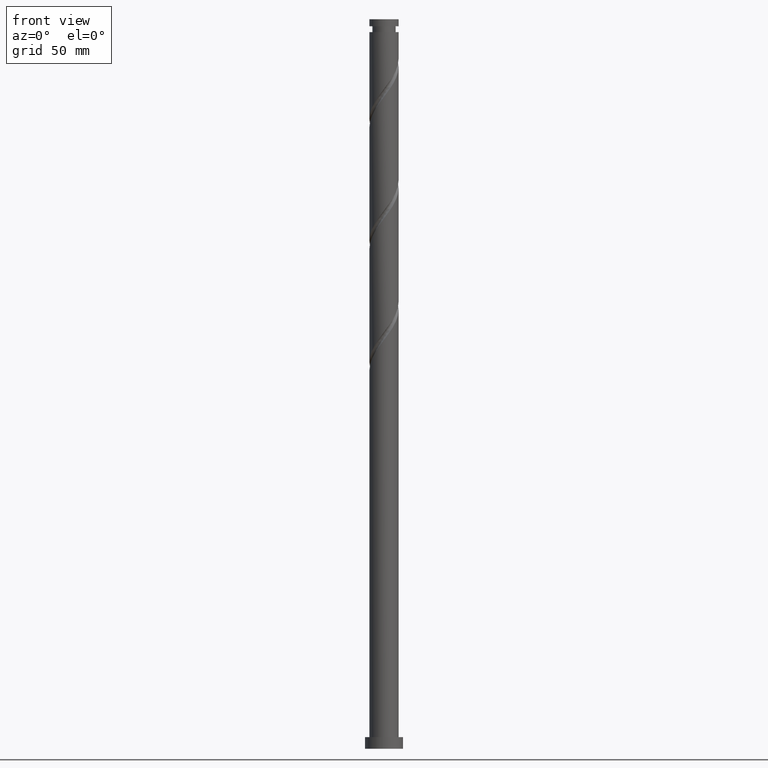
[diagram: clean part render]
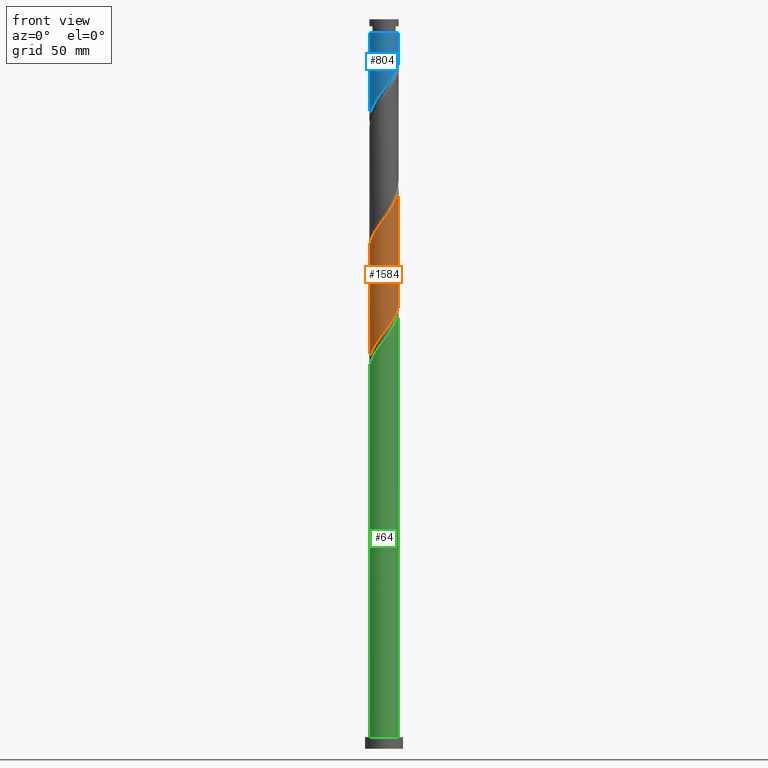
[diagram: same view with three faces highlighted in distinct colors, each labeled with its STEP entity id]
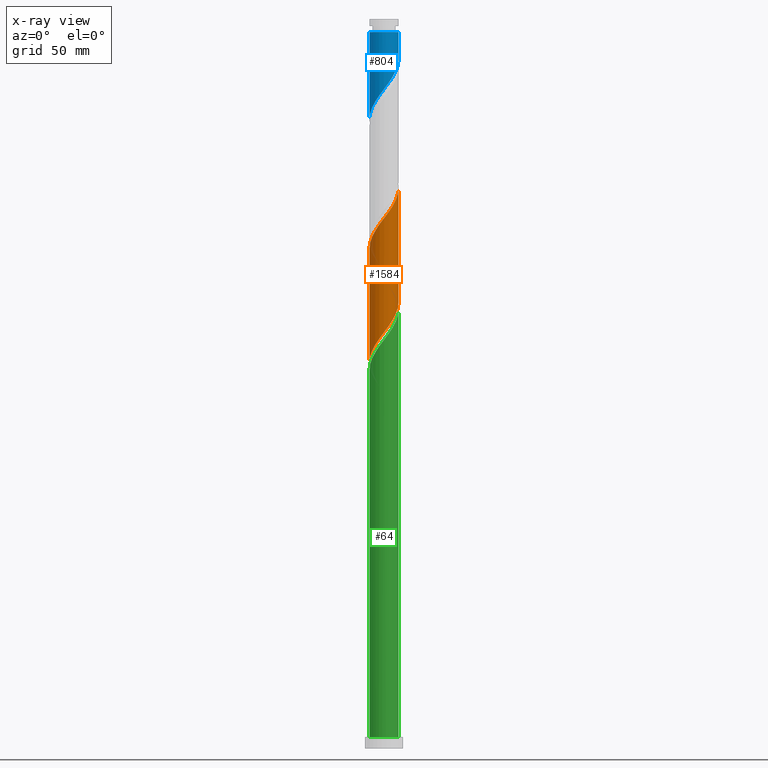
[diagram: x-ray of the same camera — body ghosted, the three highlighted faces saturated]
A machine part, front view with three faces highlighted in distinct colors.
The next image is the same camera in x-ray (body ghosted, the three faces saturated) — at least one of them is partly hidden behind the body in this view.
Their STEP definitions:

[orange] entity #1584 — the highlighted cylindrical surface (edge-blend (fillet) strip) has radius 10 mm, axis along (-0, -0, -1).
#10 = EDGE_LOOP ( 'NONE', ( #902, #165, #56, #146 ) ) ;
#24 = LINE ( 'NONE', #693, #1190 ) ;
#31 = EDGE_CURVE ( 'NONE', #1774, #295, #1317, .T. ) ;
#46 = CARTESIAN_POINT ( 'NONE',  ( -10.00000000000000178, -0.9647981492898184408, 265.9510184262350094 ) ) ;
#52 = CARTESIAN_POINT ( 'NONE',  ( 8.336771183575214295, -5.522521727681144021, 376.6015080094888958 ) ) ;
#56 = ORIENTED_EDGE ( 'NONE', *, *, #488, .T. ) ;
#67 = CARTESIAN_POINT ( 'NONE',  ( -9.800000000000013145, -1.989974874213249256, 345.3515080094888958 ) ) ;
#73 = CARTESIAN_POINT ( 'NONE',  ( 9.627253911664572783, -2.878547858533178516, 380.5077580094888958 ) ) ;
#95 = CARTESIAN_POINT ( 'NONE',  ( -10.00000000000001421, 1.093322644084541298E-14, 342.6946443648252512 ) ) ;
#105 = CARTESIAN_POINT ( 'NONE',  ( -2.878547858533178072, -9.627253911664572783, 359.6744246761555814 ) ) ;
#112 = CARTESIAN_POINT ( 'NONE',  ( -8.842937235881560554, -4.772055814403908691, 349.2577580094890664 ) ) ;
#146 = ORIENTED_EDGE ( 'NONE', *, *, #1242, .F. ) ;
#154 = CARTESIAN_POINT ( 'NONE',  ( 6.343622021019015733, -7.792850268545460146, 294.5702580094890095 ) ) ;
#165 = ORIENTED_EDGE ( 'NONE', *, *, #31, .F. ) ;
#225 = CARTESIAN_POINT ( 'NONE',  ( 5.588794693675228409, -8.292489003426412708, 371.3931746761555814 ) ) ;
#253 = CARTESIAN_POINT ( 'NONE',  ( -3.789984646438214089, -9.253973005134763952, 358.3723413428222102 ) ) ;
#264 = CARTESIAN_POINT ( 'NONE',  ( -9.999999999999996447, -7.861634696127906080E-15, 264.6750383208190556 ) ) ;
#268 = CARTESIAN_POINT ( 'NONE',  ( 9.995995418006760502, -1.024759121313043142, 304.9869246761555814 ) ) ;
#278 = CARTESIAN_POINT ( 'NONE',  ( 7.042831395995134969, -7.099191920745997031, 295.8723413428222671 ) ) ;
#295 = VERTEX_POINT ( 'NONE', #1896 ) ;
#298 = CARTESIAN_POINT ( 'NONE',  ( 1.911800580680536488, -9.815549833794827705, 288.0598413428222102 ) ) ;
#378 = CARTESIAN_POINT ( 'NONE',  ( 9.253973005134763952, -3.789984646438214089, 379.2056746761555814 ) ) ;
#424 = CARTESIAN_POINT ( 'NONE',  ( 1.989974874213248590, -9.800000000000013145, 366.1848413428221534 ) ) ;
#428 = CARTESIAN_POINT ( 'NONE',  ( -10.00000000000001599, -0.01992653374257394999, 342.7209979193424942 ) ) ;
#488 = EDGE_CURVE ( 'NONE', #1774, #1878, #24, .T. ) ;
#510 = CARTESIAN_POINT ( 'NONE',  ( -9.627253911664558572, -2.878547858533170078, 268.5285913428222102 ) ) ;
#522 = DIRECTION ( 'NONE',  ( -0.000000000000000000, -0.000000000000000000, -1.000000000000000000 ) ) ;
#537 = CARTESIAN_POINT ( 'NONE',  ( 7.099191920746005025, -7.042831395995150956, 373.9973413428221534 ) ) ;
#572 = CARTESIAN_POINT ( 'NONE',  ( -8.292489003426412708, -5.588794693675228409, 350.5598413428221534 ) ) ;
#591 = CARTESIAN_POINT ( 'NONE',  ( -7.042831395995150956, -7.099191920746005025, 353.1640080094888958 ) ) ;
#607 = CARTESIAN_POINT ( 'NONE',  ( 10.00000000000000178, 1.224646799147353454E-15, 500.0000000000000000 ) ) ;
#617 = CARTESIAN_POINT ( 'NONE',  ( 10.00000000000000000, -0.01992653374260383234, 306.3153514329683844 ) ) ;
#631 = CARTESIAN_POINT ( 'NONE',  ( 9.800000000000002487, -1.989974874213249700, 303.6848413428221534 ) ) ;
#670 = CARTESIAN_POINT ( 'NONE',  ( -3.863623220758683363, -9.223470908937388302, 280.2473413428220965 ) ) ;
#692 = CARTESIAN_POINT ( 'NONE',  ( -9.999999999999996447, -7.861634696127907657E-15, 264.6750383208190556 ) ) ;
#693 = CARTESIAN_POINT ( 'NONE',  ( -10.00000000000000178, 0.000000000000000000, 500.0000000000000000 ) ) ;
#748 = CARTESIAN_POINT ( 'NONE',  ( 2.955190627113460256, -9.604004581993260459, 367.4869246761555246 ) ) ;
#759 = CARTESIAN_POINT ( 'NONE',  ( -7.742040770971267527, -6.405533572946550791, 351.8619246761556951 ) ) ;
#771 = CARTESIAN_POINT ( 'NONE',  ( 2.878547858533169634, -9.627253911664558572, 289.3619246761555246 ) ) ;
#791 = CARTESIAN_POINT ( 'NONE',  ( -0.03985290924256556372, -9.999920586965924230, 285.4556746761555814 ) ) ;
#841 = CARTESIAN_POINT ( 'NONE',  ( -1.024759121313038257, -9.995995418006760502, 284.1535913428222102 ) ) ;
#847 = VECTOR ( 'NONE', #1740, 1000.000000000000000 ) ;
#873 =( BOUNDED_CURVE ( )  B_SPLINE_CURVE ( 2, ( #2078, #617, #1760, #268, #631, #1267, #953, #2056, #1614, #1244, #278, #154, #1895, #1079, #1749, #771, #298, #942, #791, #841, #1333, #1647, #670, #1346, #1989, #1134, #2000, #1658, #1978, #1010, #998, #510, #1494, #46, #692 ),
 .UNSPECIFIED., .F., .T. ) 
 B_SPLINE_CURVE_WITH_KNOTS ( ( 3, 2, 2, 2, 2, 2, 2, 2, 2, 2, 2, 2, 2, 2, 2, 2, 2, 3 ),
 ( 0.8045286902180871502, 0.8046875000000000000, 0.8125000000000000000, 0.8203125000000000000, 0.8281250000000000000, 0.8359375000000000000, 0.8437500000000000000, 0.8515625000000000000, 0.8593750000000000000, 0.8671875000000000000, 0.8750000000000000000, 0.8828125000000000000, 0.8906250000000000000, 0.8984375000000000000, 0.9062500000000000000, 0.9140625000000000000, 0.9218750000000000000, 0.9295286902180871502 ),
 .UNSPECIFIED. ) 
 CURVE ( )  GEOMETRIC_REPRESENTATION_ITEM ( )  RATIONAL_B_SPLINE_CURVE ( ( 0.9089165573359302419, 0.9090019243628350010, 0.9090909090909268242, 0.9047133878838330423, 0.9090909090909268242, 0.9047133878838330423, 0.9090909090909268242, 0.9047133878838330423, 0.9090909090909268242, 0.9047133878838330423, 0.9090909090909268242, 0.9047133878838330423, 0.9090909090909268242, 0.9047133878838330423, 0.9090909090909268242, 0.9047133878838330423, 0.9090909090909268242, 0.9047133878838330423, 0.9090909090909268242, 0.9047133878838330423, 0.9090909090909268242, 0.9047133878838330423, 0.9090909090909268242, 0.9047133878838330423, 0.9090909090909268242, 0.9047133878838330423, 0.9090909090909268242, 0.9047133878838330423, 0.9090909090909268242, 0.9047133878838330423, 0.9090909090909268242, 0.9047133878838330423, 0.9090909090909268242, 0.9048023726119248655, 0.9089165573359302419 ) ) 
 REPRESENTATION_ITEM ( '' )  );
#874 = CARTESIAN_POINT ( 'NONE',  ( 7.792850268545465475, -6.343622021019034385, 375.2994246761556383 ) ) ;
#893 = CARTESIAN_POINT ( 'NONE',  ( 1.024759121313035815, -9.995995418006772937, 364.8827580094888958 ) ) ;
#902 = ORIENTED_EDGE ( 'NONE', *, *, #1045, .F. ) ;
#914 = CARTESIAN_POINT ( 'NONE',  ( 9.999999999999998224, 8.834553925947433027E-15, 306.3417049874857412 ) ) ;
#942 = CARTESIAN_POINT ( 'NONE',  ( 0.9450533028279020087, -10.00384575592509329, 286.7577580094888958 ) ) ;
#947 = CYLINDRICAL_SURFACE ( 'NONE', #1327, 10.00000000000000178 ) ;
#953 = CARTESIAN_POINT ( 'NONE',  ( 9.223470908937388302, -3.863623220758683807, 301.0806746761555814 ) ) ;
#998 = CARTESIAN_POINT ( 'NONE',  ( -9.253973005134753294, -3.789984646438204319, 269.8306746761555246 ) ) ;
#1010 = CARTESIAN_POINT ( 'NONE',  ( -8.880692098604948015, -4.701421434343240335, 271.1327580094889527 ) ) ;
#1045 = EDGE_CURVE ( 'NONE', #295, #1929, #1293, .T. ) ;
#1053 = CARTESIAN_POINT ( 'NONE',  ( -6.343622021019033497, -7.792850268545465475, 354.4660913428222102 ) ) ;
#1064 = FACE_OUTER_BOUND ( 'NONE', #10, .T. ) ;
#1079 = CARTESIAN_POINT ( 'NONE',  ( 4.701421434343240335, -8.880692098604948015, 291.9660913428222102 ) ) ;
#1134 = CARTESIAN_POINT ( 'NONE',  ( -6.405533572946541021, -7.742040770971249763, 276.3410913428220965 ) ) ;
#1166 = CARTESIAN_POINT ( 'NONE',  ( 8.880692098604958673, -4.701421434343256323, 377.9035913428222671 ) ) ;
#1190 = VECTOR ( 'NONE', #522, 1000.000000000000000 ) ;
#1236 = CARTESIAN_POINT ( 'NONE',  ( -9.223470908937407842, -3.863623220758684251, 347.9556746761555814 ) ) ;
#1242 = EDGE_CURVE ( 'NONE', #1929, #1878, #873, .T. ) ;
#1244 = CARTESIAN_POINT ( 'NONE',  ( 7.742040770971249763, -6.405533572946541909, 297.1744246761555814 ) ) ;
#1255 = CARTESIAN_POINT ( 'NONE',  ( -9.995995418006772937, -1.024759121313036037, 344.0494246761556383 ) ) ;
#1267 = CARTESIAN_POINT ( 'NONE',  ( 9.604004581993244472, -2.955190627113456259, 302.3827580094888390 ) ) ;
#1293 = LINE ( 'NONE', #607, #847 ) ;
#1316 = CARTESIAN_POINT ( 'NONE',  ( 10.00000000000002132, 1.340839260406442326E-14, 384.3613110314921073 ) ) ;
#1317 =( BOUNDED_CURVE ( )  B_SPLINE_CURVE ( 2, ( #1893, #428, #1738, #1255, #67, #1392, #1236, #112, #572, #759, #591, #1053, #1705, #1551, #253, #105, #2043, #1890, #1876, #893, #424, #748, #1663, #2002, #225, #1328, #537, #874, #52, #1166, #378, #73, #1679, #1489, #1316 ),
 .UNSPECIFIED., .F., .T. ) 
 B_SPLINE_CURVE_WITH_KNOTS ( ( 3, 2, 2, 2, 2, 2, 2, 2, 2, 2, 2, 2, 2, 2, 2, 2, 2, 3 ),
 ( 0.3045286902180869282, 0.3046875000000000000, 0.3125000000000000000, 0.3203125000000000000, 0.3281250000000000000, 0.3359375000000000000, 0.3437500000000000000, 0.3515625000000000000, 0.3593750000000000000, 0.3671875000000000000, 0.3750000000000000000, 0.3828125000000000000, 0.3906250000000000000, 0.3984375000000000000, 0.4062500000000000000, 0.4140625000000000000, 0.4218750000000000000, 0.4295286902180874833 ),
 .UNSPECIFIED. ) 
 CURVE ( )  GEOMETRIC_REPRESENTATION_ITEM ( )  RATIONAL_B_SPLINE_CURVE ( ( 0.9089165573359365702, 0.9090019243628415513, 0.9090909090909334855, 0.9047133878838395926, 0.9090909090909334855, 0.9047133878838395926, 0.9090909090909334855, 0.9047133878838395926, 0.9090909090909334855, 0.9047133878838395926, 0.9090909090909334855, 0.9047133878838395926, 0.9090909090909334855, 0.9047133878838395926, 0.9090909090909334855, 0.9047133878838395926, 0.9090909090909334855, 0.9047133878838395926, 0.9090909090909334855, 0.9047133878838395926, 0.9090909090909334855, 0.9047133878838395926, 0.9090909090909334855, 0.9047133878838395926, 0.9090909090909334855, 0.9047133878838395926, 0.9090909090909334855, 0.9047133878838395926, 0.9090909090909334855, 0.9047133878838395926, 0.9090909090909334855, 0.9047133878838395926, 0.9090909090909334855, 0.9048023726119311938, 0.9089165573359372363 ) ) 
 REPRESENTATION_ITEM ( '' )  );
#1327 = AXIS2_PLACEMENT_3D ( 'NONE', #1457, #1949, #1778 ) ;
#1328 = CARTESIAN_POINT ( 'NONE',  ( 6.405533572946549903, -7.742040770971267527, 372.6952580094889527 ) ) ;
#1333 = CARTESIAN_POINT ( 'NONE',  ( -1.989974874213249034, -9.800000000000002487, 282.8515080094888390 ) ) ;
#1346 = CARTESIAN_POINT ( 'NONE',  ( -4.772055814403904250, -8.842937235881546343, 278.9452580094888390 ) ) ;
#1392 = CARTESIAN_POINT ( 'NONE',  ( -9.604004581993260459, -2.955190627113461588, 346.6535913428221534 ) ) ;
#1457 = CARTESIAN_POINT ( 'NONE',  ( 0.000000000000000000, 0.000000000000000000, 500.0000000000000000 ) ) ;
#1489 = CARTESIAN_POINT ( 'NONE',  ( 10.00000000000002487, -0.9647981492897830247, 383.0853309260761534 ) ) ;
#1494 = CARTESIAN_POINT ( 'NONE',  ( -9.815549833794827705, -1.911800580680537154, 267.2265080094888390 ) ) ;
#1551 = CARTESIAN_POINT ( 'NONE',  ( -4.701421434343251882, -8.880692098604958673, 357.0702580094888958 ) ) ;
#1584 = ADVANCED_FACE ( 'NONE', ( #1064 ), #947, .T. ) ;
#1614 = CARTESIAN_POINT ( 'NONE',  ( 8.292489003426394945, -5.588794693675227521, 298.4765080094888390 ) ) ;
#1647 = CARTESIAN_POINT ( 'NONE',  ( -2.955190627113459367, -9.604004581993240919, 281.5494246761556383 ) ) ;
#1658 = CARTESIAN_POINT ( 'NONE',  ( -7.792850268545455705, -6.343622021019020174, 273.7369246761555246 ) ) ;
#1663 = CARTESIAN_POINT ( 'NONE',  ( 3.863623220758686028, -9.223470908937407842, 368.7890080094888390 ) ) ;
#1679 = CARTESIAN_POINT ( 'NONE',  ( 9.815549833794836587, -1.911800580680548256, 381.8098413428221534 ) ) ;
#1705 = CARTESIAN_POINT ( 'NONE',  ( -5.522521727681143133, -8.336771183575214295, 355.7681746761555246 ) ) ;
#1738 = CARTESIAN_POINT ( 'NONE',  ( -9.999920586965941993, -0.03985290924256424533, 342.7473413428222102 ) ) ;
#1740 = DIRECTION ( 'NONE',  ( -0.000000000000000000, -0.000000000000000000, -1.000000000000000000 ) ) ;
#1749 = CARTESIAN_POINT ( 'NONE',  ( 3.789984646438204319, -9.253973005134753294, 290.6640080094887821 ) ) ;
#1760 = CARTESIAN_POINT ( 'NONE',  ( 9.999920586965924230, -0.03985290924256618128, 306.2890080094888958 ) ) ;
#1774 = VERTEX_POINT ( 'NONE', #95 ) ;
#1778 = DIRECTION ( 'NONE',  ( -1.000000000000000000, 0.000000000000000000, 0.000000000000000000 ) ) ;
#1876 = CARTESIAN_POINT ( 'NONE',  ( 0.03985290924256169875, -9.999920586965943770, 363.5806746761555814 ) ) ;
#1878 = VERTEX_POINT ( 'NONE', #264 ) ;
#1890 = CARTESIAN_POINT ( 'NONE',  ( -0.9450533028279082259, -10.00384575592510750, 362.2785913428222102 ) ) ;
#1893 = CARTESIAN_POINT ( 'NONE',  ( -10.00000000000001421, 1.093322644084541298E-14, 342.6946443648252512 ) ) ;
#1895 = CARTESIAN_POINT ( 'NONE',  ( 5.522521727681131587, -8.336771183575201860, 293.2681746761554678 ) ) ;
#1896 = CARTESIAN_POINT ( 'NONE',  ( 10.00000000000002132, 1.340839260406442326E-14, 384.3613110314921073 ) ) ;
#1929 = VERTEX_POINT ( 'NONE', #914 ) ;
#1949 = DIRECTION ( 'NONE',  ( -0.000000000000000000, -0.000000000000000000, -1.000000000000000000 ) ) ;
#1978 = CARTESIAN_POINT ( 'NONE',  ( -8.336771183575200084, -5.522521727681131587, 272.4348413428220965 ) ) ;
#1989 = CARTESIAN_POINT ( 'NONE',  ( -5.588794693675222192, -8.292489003426396721, 277.6431746761555246 ) ) ;
#2000 = CARTESIAN_POINT ( 'NONE',  ( -7.099191920745997031, -7.042831395995135857, 275.0390080094888958 ) ) ;
#2002 = CARTESIAN_POINT ( 'NONE',  ( 4.772055814403907803, -8.842937235881560554, 370.0910913428223239 ) ) ;
#2043 = CARTESIAN_POINT ( 'NONE',  ( -1.911800580680543815, -9.815549833794840140, 360.9765080094889527 ) ) ;
#2056 = CARTESIAN_POINT ( 'NONE',  ( 8.842937235881546343, -4.772055814403904250, 299.7785913428220965 ) ) ;
#2078 = CARTESIAN_POINT ( 'NONE',  ( 9.999999999999998224, 8.834553925947433027E-15, 306.3417049874857980 ) ) ;

[blue] entity #804 — the highlighted cylindrical surface (edge-blend (fillet) strip) has radius 10 mm, axis along (-0, -0, -1).
#17 = CARTESIAN_POINT ( 'NONE',  ( 9.800000000000002487, -1.989974874213249700, 470.3515080094888958 ) ) ;
#27 = CARTESIAN_POINT ( 'NONE',  ( -9.815549833794827705, -1.911800580680537154, 433.8931746761554678 ) ) ;
#104 =( BOUNDED_CURVE ( )  B_SPLINE_CURVE ( 2, ( #1143, #171, #651, #1470, #17, #1307, #985, #1436, #785, #1643, #1447, #1935, #933, #1287, #416, #1717, #291, #1766, #1593, #138, #319, #960, #624, #1617, #159, #458, #1106, #1751, #1318, #1971, #505, #1153, #27, #676, #834 ),
 .UNSPECIFIED., .F., .T. ) 
 B_SPLINE_CURVE_WITH_KNOTS ( ( 3, 2, 2, 2, 2, 2, 2, 2, 2, 2, 2, 2, 2, 2, 2, 2, 2, 3 ),
 ( 0.3045286902180872612, 0.3046875000000000000, 0.3125000000000000000, 0.3203125000000000000, 0.3281250000000000000, 0.3359375000000000000, 0.3437500000000000000, 0.3515625000000000000, 0.3593750000000000000, 0.3671875000000000000, 0.3750000000000000000, 0.3828125000000000000, 0.3906250000000000000, 0.3984375000000000000, 0.4062500000000000000, 0.4140625000000000000, 0.4218750000000000000, 0.4295286902180873168 ),
 .UNSPECIFIED. ) 
 CURVE ( )  GEOMETRIC_REPRESENTATION_ITEM ( )  RATIONAL_B_SPLINE_CURVE ( ( 0.9089165573359302419, 0.9090019243628350010, 0.9090909090909268242, 0.9047133878838330423, 0.9090909090909268242, 0.9047133878838330423, 0.9090909090909268242, 0.9047133878838330423, 0.9090909090909268242, 0.9047133878838330423, 0.9090909090909268242, 0.9047133878838330423, 0.9090909090909268242, 0.9047133878838330423, 0.9090909090909268242, 0.9047133878838330423, 0.9090909090909268242, 0.9047133878838330423, 0.9090909090909268242, 0.9047133878838330423, 0.9090909090909268242, 0.9047133878838330423, 0.9090909090909268242, 0.9047133878838330423, 0.9090909090909268242, 0.9047133878838330423, 0.9090909090909268242, 0.9047133878838330423, 0.9090909090909268242, 0.9047133878838330423, 0.9090909090909268242, 0.9047133878838330423, 0.9090909090909268242, 0.9048023726119247545, 0.9089165573359303529 ) ) 
 REPRESENTATION_ITEM ( '' )  );
#135 = VECTOR ( 'NONE', #525, 1000.000000000000000 ) ;
#138 = CARTESIAN_POINT ( 'NONE',  ( -1.024759121313038257, -9.995995418006760502, 450.8202580094888958 ) ) ;
#159 = CARTESIAN_POINT ( 'NONE',  ( -5.588794693675222192, -8.292489003426396721, 444.3098413428220965 ) ) ;
#161 = DIRECTION ( 'NONE',  ( -0.000000000000000000, -0.000000000000000000, -1.000000000000000000 ) ) ;
#171 = CARTESIAN_POINT ( 'NONE',  ( 10.00000000000000178, -0.01992653374261777258, 472.9820180996350700 ) ) ;
#202 = DIRECTION ( 'NONE',  ( -0.000000000000000000, -0.000000000000000000, -1.000000000000000000 ) ) ;
#214 = CYLINDRICAL_SURFACE ( 'NONE', #941, 10.00000000000000178 ) ;
#222 = CARTESIAN_POINT ( 'NONE',  ( 0.000000000000000000, 0.000000000000000000, 500.0000000000000000 ) ) ;
#291 = CARTESIAN_POINT ( 'NONE',  ( 1.911800580680536488, -9.815549833794827705, 454.7265080094888390 ) ) ;
#319 = CARTESIAN_POINT ( 'NONE',  ( -1.989974874213249034, -9.800000000000002487, 449.5181746761554678 ) ) ;
#351 = CARTESIAN_POINT ( 'NONE',  ( 10.00000000000000000, -5.095711061928329395E-15, 473.0083716541523131 ) ) ;
#358 = ORIENTED_EDGE ( 'NONE', *, *, #1708, .F. ) ;
#416 = CARTESIAN_POINT ( 'NONE',  ( 3.789984646438204319, -9.253973005134753294, 457.3306746761554678 ) ) ;
#458 = CARTESIAN_POINT ( 'NONE',  ( -6.405533572946541021, -7.742040770971249763, 443.0077580094889527 ) ) ;
#505 = CARTESIAN_POINT ( 'NONE',  ( -9.253973005134753294, -3.789984646438204319, 436.4973413428222102 ) ) ;
#525 = DIRECTION ( 'NONE',  ( -0.000000000000000000, -0.000000000000000000, -1.000000000000000000 ) ) ;
#543 = AXIS2_PLACEMENT_3D ( 'NONE', #1438, #161, #2075 ) ;
#596 = VERTEX_POINT ( 'NONE', #1488 ) ;
#624 = CARTESIAN_POINT ( 'NONE',  ( -3.863623220758683363, -9.223470908937388302, 446.9140080094888958 ) ) ;
#651 = CARTESIAN_POINT ( 'NONE',  ( 9.999920586965924230, -0.03985290924256618128, 472.9556746761554678 ) ) ;
#676 = CARTESIAN_POINT ( 'NONE',  ( -10.00000000000000711, -0.9647981492897977907, 432.6176850929016950 ) ) ;
#685 = LINE ( 'NONE', #1349, #135 ) ;
#720 = VECTOR ( 'NONE', #1536, 1000.000000000000000 ) ;
#745 = EDGE_CURVE ( 'NONE', #1389, #596, #685, .T. ) ;
#785 = CARTESIAN_POINT ( 'NONE',  ( 8.292489003426394945, -5.588794693675227521, 465.1431746761555246 ) ) ;
#787 = ORIENTED_EDGE ( 'NONE', *, *, #888, .F. ) ;
#804 = ADVANCED_FACE ( 'NONE', ( #1305 ), #214, .T. ) ;
#810 = VERTEX_POINT ( 'NONE', #351 ) ;
#834 = CARTESIAN_POINT ( 'NONE',  ( -9.999999999999998224, 6.072357951632222932E-15, 431.3417049874856843 ) ) ;
#888 = EDGE_CURVE ( 'NONE', #1818, #810, #1557, .T. ) ;
#933 = CARTESIAN_POINT ( 'NONE',  ( 5.522521727681131587, -8.336771183575201860, 459.9348413428221534 ) ) ;
#941 = AXIS2_PLACEMENT_3D ( 'NONE', #222, #202, #1468 ) ;
#960 = CARTESIAN_POINT ( 'NONE',  ( -2.955190627113459367, -9.604004581993240919, 448.2160913428222102 ) ) ;
#985 = CARTESIAN_POINT ( 'NONE',  ( 9.223470908937388302, -3.863623220758683807, 467.7473413428222102 ) ) ;
#1040 = CARTESIAN_POINT ( 'NONE',  ( 10.00000000000000178, 1.224646799147353454E-15, 500.0000000000000000 ) ) ;
#1106 = CARTESIAN_POINT ( 'NONE',  ( -7.099191920745997031, -7.042831395995135857, 441.7056746761554678 ) ) ;
#1143 = CARTESIAN_POINT ( 'NONE',  ( 10.00000000000000000, -5.095711061928329395E-15, 473.0083716541523131 ) ) ;
#1153 = CARTESIAN_POINT ( 'NONE',  ( -9.627253911664558572, -2.878547858533170078, 435.1952580094888390 ) ) ;
#1287 = CARTESIAN_POINT ( 'NONE',  ( 4.701421434343240335, -8.880692098604948015, 458.6327580094888958 ) ) ;
#1305 = FACE_OUTER_BOUND ( 'NONE', #1587, .T. ) ;
#1307 = CARTESIAN_POINT ( 'NONE',  ( 9.604004581993244472, -2.955190627113456259, 469.0494246761555814 ) ) ;
#1318 = CARTESIAN_POINT ( 'NONE',  ( -8.336771183575200084, -5.522521727681131587, 439.1015080094888390 ) ) ;
#1349 = CARTESIAN_POINT ( 'NONE',  ( -10.00000000000000178, 0.000000000000000000, 500.0000000000000000 ) ) ;
#1389 = VERTEX_POINT ( 'NONE', #1474 ) ;
#1436 = CARTESIAN_POINT ( 'NONE',  ( 8.842937235881546343, -4.772055814403904250, 466.4452580094888958 ) ) ;
#1438 = CARTESIAN_POINT ( 'NONE',  ( 0.000000000000000000, 0.000000000000000000, 491.1848413428221534 ) ) ;
#1447 = CARTESIAN_POINT ( 'NONE',  ( 7.042831395995134969, -7.099191920745997031, 462.5390080094888958 ) ) ;
#1468 = DIRECTION ( 'NONE',  ( -1.000000000000000000, 0.000000000000000000, 0.000000000000000000 ) ) ;
#1470 = CARTESIAN_POINT ( 'NONE',  ( 9.995995418006760502, -1.024759121313043142, 471.6535913428222102 ) ) ;
#1474 = CARTESIAN_POINT ( 'NONE',  ( -9.999999999999955591, 0.000000000000000000, 491.1848413428221534 ) ) ;
#1488 = CARTESIAN_POINT ( 'NONE',  ( -9.999999999999998224, 6.072357951632222932E-15, 431.3417049874856843 ) ) ;
#1527 = CIRCLE ( 'NONE', #543, 9.999999999999955591 ) ;
#1536 = DIRECTION ( 'NONE',  ( -0.000000000000000000, -0.000000000000000000, -1.000000000000000000 ) ) ;
#1557 = LINE ( 'NONE', #1040, #720 ) ;
#1587 = EDGE_LOOP ( 'NONE', ( #787, #2080, #1986, #358 ) ) ;
#1593 = CARTESIAN_POINT ( 'NONE',  ( -0.03985290924256556372, -9.999920586965924230, 452.1223413428222102 ) ) ;
#1617 = CARTESIAN_POINT ( 'NONE',  ( -4.772055814403904250, -8.842937235881546343, 445.6119246761554678 ) ) ;
#1643 = CARTESIAN_POINT ( 'NONE',  ( 7.742040770971249763, -6.405533572946541909, 463.8410913428220965 ) ) ;
#1708 = EDGE_CURVE ( 'NONE', #810, #596, #104, .T. ) ;
#1717 = CARTESIAN_POINT ( 'NONE',  ( 2.878547858533169634, -9.627253911664558572, 456.0285913428222102 ) ) ;
#1751 = CARTESIAN_POINT ( 'NONE',  ( -7.792850268545455705, -6.343622021019020174, 440.4035913428222671 ) ) ;
#1766 = CARTESIAN_POINT ( 'NONE',  ( 0.9450533028279020087, -10.00384575592509329, 453.4244246761555814 ) ) ;
#1818 = VERTEX_POINT ( 'NONE', #2033 ) ;
#1935 = CARTESIAN_POINT ( 'NONE',  ( 6.343622021019015733, -7.792850268545460146, 461.2369246761555814 ) ) ;
#1971 = CARTESIAN_POINT ( 'NONE',  ( -8.880692098604948015, -4.701421434343240335, 437.7994246761554109 ) ) ;
#1986 = ORIENTED_EDGE ( 'NONE', *, *, #745, .T. ) ;
#2031 = EDGE_CURVE ( 'NONE', #1818, #1389, #1527, .T. ) ;
#2033 = CARTESIAN_POINT ( 'NONE',  ( 9.999999999999955591, 1.224646799147350693E-15, 491.1848413428221534 ) ) ;
#2075 = DIRECTION ( 'NONE',  ( -1.000000000000000000, 0.000000000000000000, 0.000000000000000000 ) ) ;
#2080 = ORIENTED_EDGE ( 'NONE', *, *, #2031, .T. ) ;

[green] entity #64 — the highlighted cylindrical surface (edge-blend (fillet) strip) has radius 10 mm, axis along (-0, -0, -1).
#44 = CIRCLE ( 'NONE', #1222, 10.00000000000000178 ) ;
#64 = ADVANCED_FACE ( 'NONE', ( #1201 ), #1995, .T. ) ;
#71 = CARTESIAN_POINT ( 'NONE',  ( -7.042831395995150956, -7.099191920746005025, 269.8306746761555246 ) ) ;
#82 = CARTESIAN_POINT ( 'NONE',  ( -4.701421434343251882, -8.880692098604958673, 273.7369246761555814 ) ) ;
#108 = CARTESIAN_POINT ( 'NONE',  ( -7.742040770971267527, -6.405533572946550791, 268.5285913428222671 ) ) ;
#119 = EDGE_CURVE ( 'NONE', #935, #1452, #866, .T. ) ;
#124 = CARTESIAN_POINT ( 'NONE',  ( -1.911800580680543815, -9.815549833794840140, 277.6431746761555246 ) ) ;
#195 = CARTESIAN_POINT ( 'NONE',  ( -10.00000000000000178, 0.000000000000000000, 500.0000000000000000 ) ) ;
#204 = DIRECTION ( 'NONE',  ( -0.000000000000000000, -0.000000000000000000, -1.000000000000000000 ) ) ;
#258 = CARTESIAN_POINT ( 'NONE',  ( -8.292489003426412708, -5.588794693675228409, 267.2265080094888958 ) ) ;
#310 = EDGE_LOOP ( 'NONE', ( #908, #1409, #814, #1062 ) ) ;
#312 = CARTESIAN_POINT ( 'NONE',  ( 1.989974874213248590, -9.800000000000013145, 282.8515080094888390 ) ) ;
#330 = CARTESIAN_POINT ( 'NONE',  ( 10.00000000000000178, 1.224646799147353454E-15, 8.000000000000000000 ) ) ;
#334 = CARTESIAN_POINT ( 'NONE',  ( -10.00000000000000178, 0.000000000000000000, 8.000000000000000000 ) ) ;
#361 = CARTESIAN_POINT ( 'NONE',  ( 0.000000000000000000, 0.000000000000000000, 500.0000000000000000 ) ) ;
#411 = CARTESIAN_POINT ( 'NONE',  ( -8.842937235881560554, -4.772055814403908691, 265.9244246761555246 ) ) ;
#420 = CARTESIAN_POINT ( 'NONE',  ( -10.00000000000001066, 1.093322644084541298E-14, 259.3613110314919368 ) ) ;
#431 = CARTESIAN_POINT ( 'NONE',  ( 6.405533572946549903, -7.742040770971267527, 289.3619246761555246 ) ) ;
#453 = CARTESIAN_POINT ( 'NONE',  ( 9.815549833794836587, -1.911800580680548256, 298.4765080094888390 ) ) ;
#465 = CARTESIAN_POINT ( 'NONE',  ( 8.336771183575214295, -5.522521727681144021, 293.2681746761555814 ) ) ;
#579 = CARTESIAN_POINT ( 'NONE',  ( -9.999920586965941993, -0.03985290924256424533, 259.4140080094888958 ) ) ;
#598 = CARTESIAN_POINT ( 'NONE',  ( 7.099191920746005025, -7.042831395995150956, 290.6640080094889527 ) ) ;
#644 = CARTESIAN_POINT ( 'NONE',  ( 10.00000000000001599, -0.9647981492898384248, 299.7519975927426685 ) ) ;
#727 = CARTESIAN_POINT ( 'NONE',  ( -3.789984646438214089, -9.253973005134763952, 275.0390080094889527 ) ) ;
#764 = CARTESIAN_POINT ( 'NONE',  ( 2.955190627113460256, -9.604004581993260459, 284.1535913428222671 ) ) ;
#814 = ORIENTED_EDGE ( 'NONE', *, *, #119, .T. ) ;
#866 = LINE ( 'NONE', #195, #1044 ) ;
#872 = DIRECTION ( 'NONE',  ( 0.000000000000000000, 0.000000000000000000, 1.000000000000000000 ) ) ;
#908 = ORIENTED_EDGE ( 'NONE', *, *, #1081, .F. ) ;
#910 = CARTESIAN_POINT ( 'NONE',  ( 0.03985290924256169875, -9.999920586965943770, 280.2473413428222102 ) ) ;
#918 = CARTESIAN_POINT ( 'NONE',  ( 5.588794693675228409, -8.292489003426412708, 288.0598413428222102 ) ) ;
#929 = CARTESIAN_POINT ( 'NONE',  ( 7.792850268545465475, -6.343622021019034385, 291.9660913428222102 ) ) ;
#935 = VERTEX_POINT ( 'NONE', #1030 ) ;
#995 = EDGE_CURVE ( 'NONE', #1452, #2065, #44, .T. ) ;
#1020 = EDGE_CURVE ( 'NONE', #935, #1481, #1843, .T. ) ;
#1030 = CARTESIAN_POINT ( 'NONE',  ( -10.00000000000001421, 1.093322644084541298E-14, 259.3613110314919368 ) ) ;
#1044 = VECTOR ( 'NONE', #1653, 1000.000000000000000 ) ;
#1062 = ORIENTED_EDGE ( 'NONE', *, *, #995, .T. ) ;
#1068 = DIRECTION ( 'NONE',  ( 1.000000000000000000, 0.000000000000000000, 0.000000000000000000 ) ) ;
#1081 = EDGE_CURVE ( 'NONE', #1481, #2065, #1122, .T. ) ;
#1122 = LINE ( 'NONE', #1568, #1291 ) ;
#1199 = CARTESIAN_POINT ( 'NONE',  ( -5.522521727681143133, -8.336771183575214295, 272.4348413428222671 ) ) ;
#1201 = FACE_OUTER_BOUND ( 'NONE', #310, .T. ) ;
#1222 = AXIS2_PLACEMENT_3D ( 'NONE', #1711, #872, #1068 ) ;
#1226 = CARTESIAN_POINT ( 'NONE',  ( -9.995995418006772937, -1.024759121313036037, 260.7160913428222102 ) ) ;
#1257 = CARTESIAN_POINT ( 'NONE',  ( 1.024759121313035815, -9.995995418006772937, 281.5494246761556383 ) ) ;
#1291 = VECTOR ( 'NONE', #1942, 1000.000000000000000 ) ;
#1371 = CARTESIAN_POINT ( 'NONE',  ( -2.878547858533178072, -9.627253911664572783, 276.3410913428221534 ) ) ;
#1409 = ORIENTED_EDGE ( 'NONE', *, *, #1020, .F. ) ;
#1411 = CARTESIAN_POINT ( 'NONE',  ( 10.00000000000002132, 1.340839260406442326E-14, 301.0279776981586792 ) ) ;
#1451 = CARTESIAN_POINT ( 'NONE',  ( 8.880692098604958673, -4.701421434343256323, 294.5702580094888390 ) ) ;
#1452 = VERTEX_POINT ( 'NONE', #334 ) ;
#1461 = AXIS2_PLACEMENT_3D ( 'NONE', #361, #204, #2011 ) ;
#1481 = VERTEX_POINT ( 'NONE', #1852 ) ;
#1515 = CARTESIAN_POINT ( 'NONE',  ( -9.800000000000013145, -1.989974874213249256, 262.0181746761555246 ) ) ;
#1523 = CARTESIAN_POINT ( 'NONE',  ( -10.00000000000001776, -0.01992653374258439997, 259.3876645860091799 ) ) ;
#1568 = CARTESIAN_POINT ( 'NONE',  ( 10.00000000000000178, 1.224646799147353454E-15, 500.0000000000000000 ) ) ;
#1653 = DIRECTION ( 'NONE',  ( -0.000000000000000000, -0.000000000000000000, -1.000000000000000000 ) ) ;
#1711 = CARTESIAN_POINT ( 'NONE',  ( 0.000000000000000000, 0.000000000000000000, 8.000000000000000000 ) ) ;
#1720 = CARTESIAN_POINT ( 'NONE',  ( -9.223470908937407842, -3.863623220758684251, 264.6223413428222102 ) ) ;
#1843 =( BOUNDED_CURVE ( )  B_SPLINE_CURVE ( 2, ( #420, #1523, #579, #1226, #1515, #1873, #1720, #411, #258, #108, #71, #2009, #1199, #82, #727, #1371, #124, #1931, #910, #1257, #312, #764, #1908, #2092, #918, #431, #598, #929, #465, #1451, #1919, #2102, #453, #644, #1411 ),
 .UNSPECIFIED., .F., .T. ) 
 B_SPLINE_CURVE_WITH_KNOTS ( ( 3, 2, 2, 2, 2, 2, 2, 2, 2, 2, 2, 2, 2, 2, 2, 2, 2, 3 ),
 ( 0.05452869021808701144, 0.05468750000000000000, 0.06250000000000000000, 0.07031250000000000000, 0.07812500000000000000, 0.08593750000000000000, 0.09375000000000000000, 0.1015625000000000000, 0.1093750000000000000, 0.1171875000000000000, 0.1250000000000000000, 0.1328125000000000000, 0.1406250000000000000, 0.1484375000000000000, 0.1562500000000000000, 0.1640625000000000000, 0.1718750000000000000, 0.1795286902180870392 ),
 .UNSPECIFIED. ) 
 CURVE ( )  GEOMETRIC_REPRESENTATION_ITEM ( )  RATIONAL_B_SPLINE_CURVE ( ( 0.9089165573359366812, 0.9090019243628415513, 0.9090909090909334855, 0.9047133878838395926, 0.9090909090909334855, 0.9047133878838395926, 0.9090909090909334855, 0.9047133878838395926, 0.9090909090909334855, 0.9047133878838395926, 0.9090909090909334855, 0.9047133878838395926, 0.9090909090909334855, 0.9047133878838395926, 0.9090909090909334855, 0.9047133878838395926, 0.9090909090909334855, 0.9047133878838395926, 0.9090909090909334855, 0.9047133878838395926, 0.9090909090909334855, 0.9047133878838395926, 0.9090909090909334855, 0.9047133878838395926, 0.9090909090909334855, 0.9047133878838395926, 0.9090909090909334855, 0.9047133878838395926, 0.9090909090909334855, 0.9047133878838395926, 0.9090909090909334855, 0.9047133878838395926, 0.9090909090909334855, 0.9048023726119314158, 0.9089165573359367922 ) ) 
 REPRESENTATION_ITEM ( '' )  );
#1852 = CARTESIAN_POINT ( 'NONE',  ( 10.00000000000002132, 1.340839260406442326E-14, 301.0279776981586792 ) ) ;
#1873 = CARTESIAN_POINT ( 'NONE',  ( -9.604004581993260459, -2.955190627113461588, 263.3202580094888958 ) ) ;
#1908 = CARTESIAN_POINT ( 'NONE',  ( 3.863623220758686028, -9.223470908937407842, 285.4556746761554678 ) ) ;
#1919 = CARTESIAN_POINT ( 'NONE',  ( 9.253973005134763952, -3.789984646438214089, 295.8723413428222102 ) ) ;
#1931 = CARTESIAN_POINT ( 'NONE',  ( -0.9450533028279082259, -10.00384575592510750, 278.9452580094888390 ) ) ;
#1942 = DIRECTION ( 'NONE',  ( -0.000000000000000000, -0.000000000000000000, -1.000000000000000000 ) ) ;
#1995 = CYLINDRICAL_SURFACE ( 'NONE', #1461, 10.00000000000000178 ) ;
#2009 = CARTESIAN_POINT ( 'NONE',  ( -6.343622021019033497, -7.792850268545465475, 271.1327580094888390 ) ) ;
#2011 = DIRECTION ( 'NONE',  ( -1.000000000000000000, 0.000000000000000000, 0.000000000000000000 ) ) ;
#2065 = VERTEX_POINT ( 'NONE', #330 ) ;
#2092 = CARTESIAN_POINT ( 'NONE',  ( 4.772055814403907803, -8.842937235881560554, 286.7577580094889527 ) ) ;
#2102 = CARTESIAN_POINT ( 'NONE',  ( 9.627253911664572783, -2.878547858533178516, 297.1744246761555246 ) ) ;